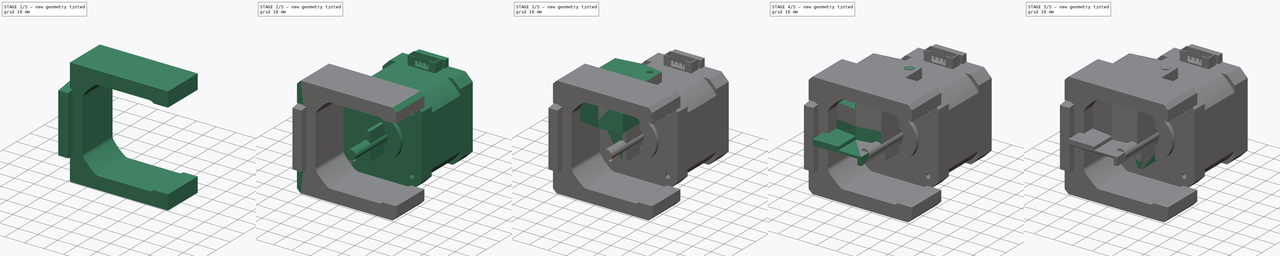
[diagram: build sequence overview — one tinted view per stage of 5, left to right]
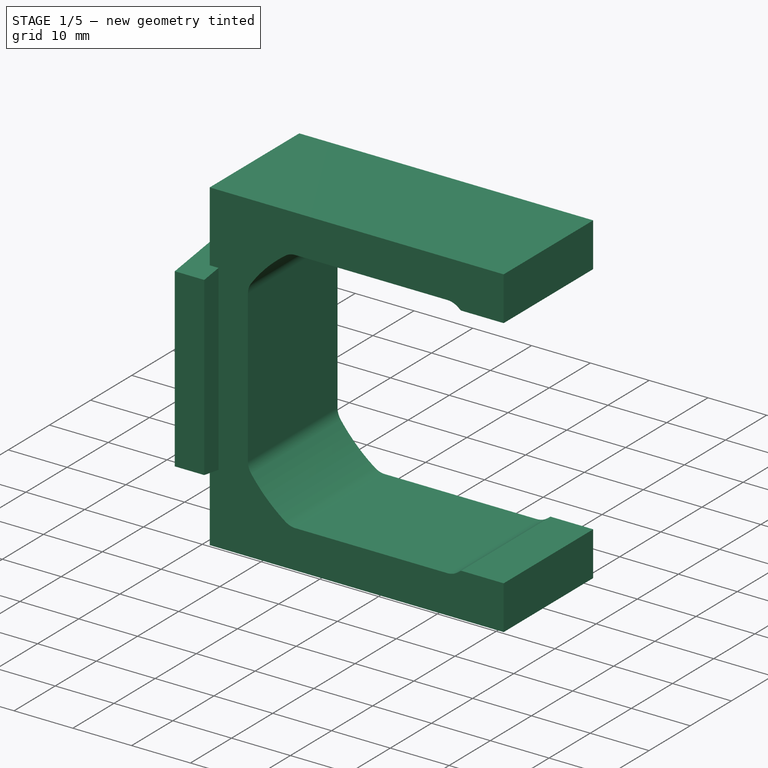
[diagram: stage 1 of 5 — iso view after this stage's code; geometry added in this stage tinted green]
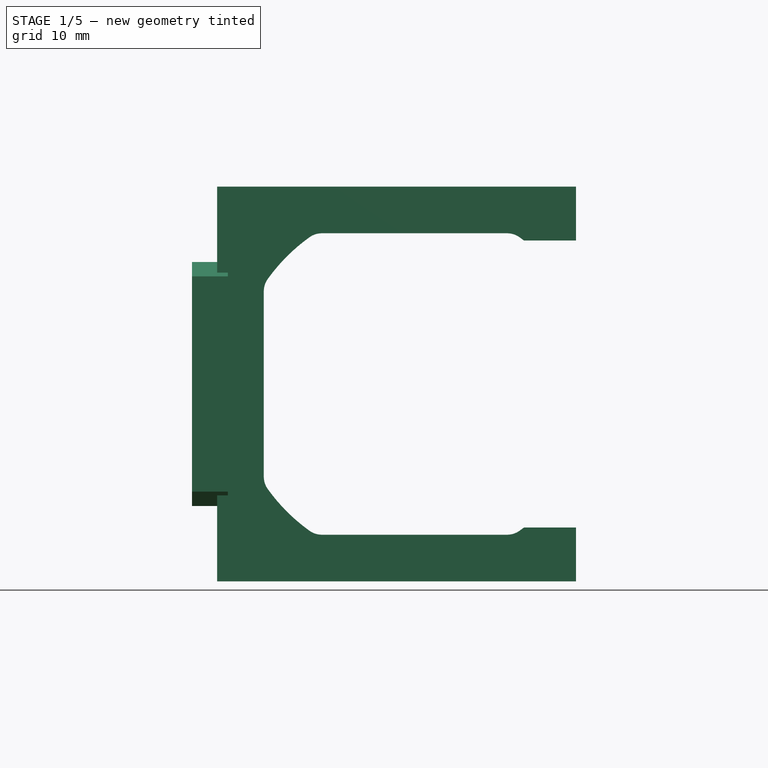
[diagram: stage 1 of 5 — front view after this stage's code; geometry added in this stage tinted green]
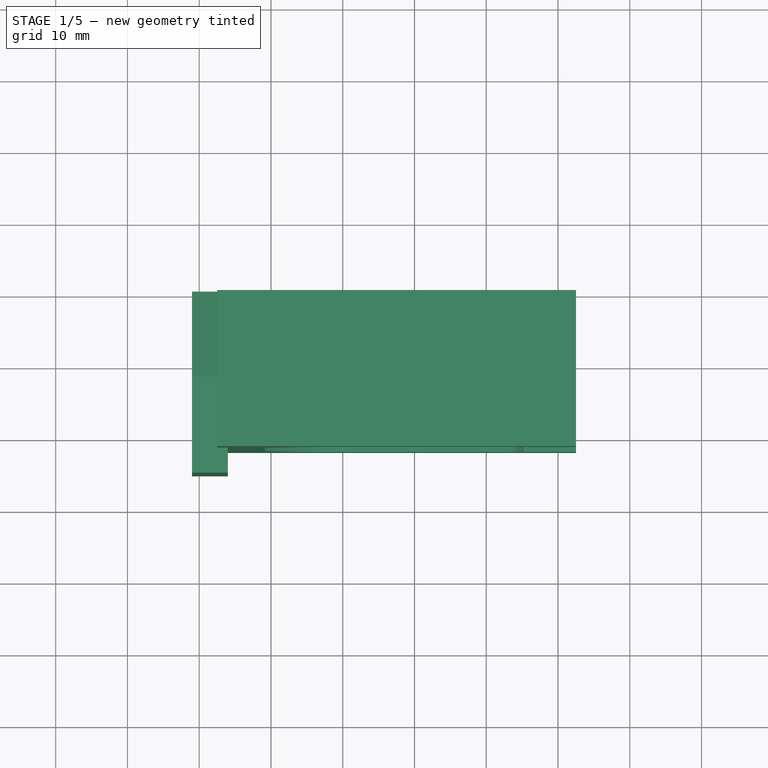
[diagram: stage 1 of 5 — top view after this stage's code; geometry added in this stage tinted green]
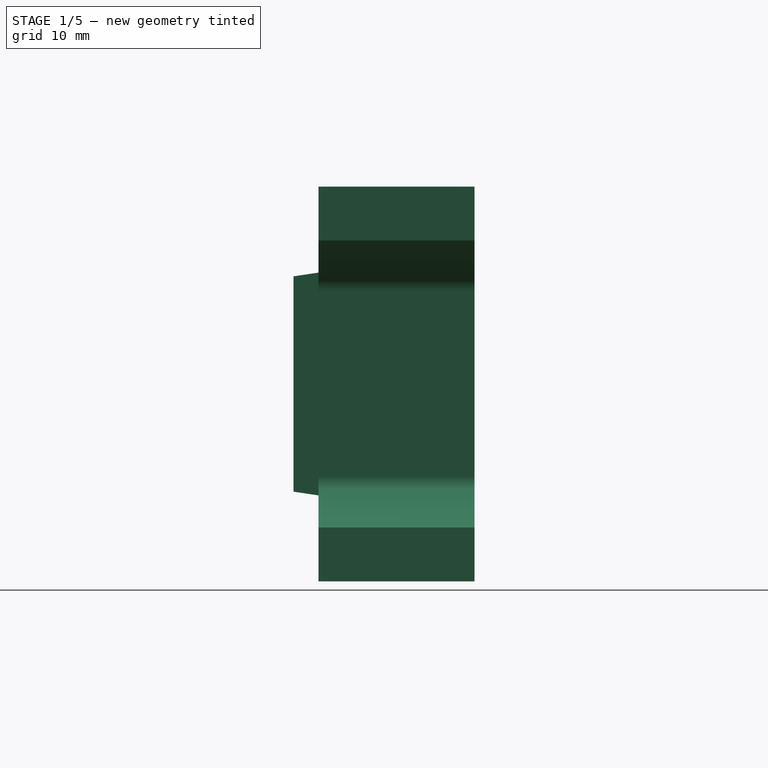
[diagram: stage 1 of 5 — right view after this stage's code; geometry added in this stage tinted green]
FCSTD DOCUMENT  (FreeCAD 1.1R44555 (Git))
Label: ender 3 kusba mount
License: All rights reserved
LicenseURL: https://en.wikipedia.org/wiki/All_rights_reserved
objects: Sketcher::SketchObject×24, PartDesign::Pad×15, PartDesign::Pocket×11, PartDesign::Chamfer×8, PartDesign::Body×5, App::Point×5, Part::FeaturePython×5, Part::Feature×3, PartDesign::Mirrored×2, PartDesign::ShapeBinder×2, Part::Box×2, PartDesign::SubShapeBinder×2, App::DocumentObjectGroup×1
note: 173 computed .brp shape members not serialized (recipe doc carries the construction recipe); baked Part::Feature solids carry a one-line shape summary decoded from their .brp

FEATURE [App::DocumentObjectGroup] GrExplode_Slice  label="Exploded Slice"
  Group = -> [Slice_child0,Slice_child1]
FEATURE [Part::Feature] Part__Feature001  label="SimpleBed001"
  Placement = pos=(-27.5,-1.975,6.1e-15) rot=(0.57735,0.57735,-0.57735;4.18879rad)
  shape: bbox 11.5 x 25.23 x 60 mm, 29 faces (baked)
FEATURE [PartDesign::SubShapeBinder] Binder001
  BindCopyOnChange = 0
  BindMode = 0
  ClaimChildren = false
  Context = -> Body004 [Binder001.]
  Fuse = false
  MakeFace = true
  OffsetFill = false
  OffsetIntersection = false
  OffsetJoinType = 0
  OffsetOpenResult = false
  PartialLoad = false
  Placement = pos=(10,-0.025,0) rot=(0,0,1;0rad)
  Refine = true
  Relative = true
  Support = -> [Part__Feature001[Face1]]
  _Version = 2
FEATURE [Sketcher::SketchObject] Sketch002
  ArcFitTolerance = 1e-06
  ExternalTypes = [0,0]
  FullyConstrained = false
  MakeInternals = false
  MapMode = 5
  Placement = pos=(-31,-6.9e-15,3.4e-15) rot=(0.57735,-0.57735,-0.57735;2.0944rad)
  sketch-geometry (8):
    g0: LineSegment StartX=0.665674 StartY=14.6086 StartZ=0 EndX=0.665674 EndY=9.04659 EndZ=0
    g1: LineSegment StartX=0.665674 StartY=9.04659 StartZ=0 EndX=7.47092 EndY=9.04659 EndZ=0
    g2: LineSegment StartX=7.47092 StartY=9.04659 StartZ=0 EndX=7.47092 EndY=14.6086 EndZ=0
    g3: LineSegment StartX=7.47092 StartY=14.6086 StartZ=0 EndX=0.665674 EndY=14.6086 EndZ=0
    g4: LineSegment StartX=0.73111 StartY=-9.07892 StartZ=0 EndX=0.73111 EndY=-14.51 EndZ=0
    g5: LineSegment StartX=0.73111 StartY=-14.51 StartZ=0 EndX=7.47092 EndY=-14.51 EndZ=0
    g6: LineSegment StartX=7.47092 StartY=-14.51 StartZ=0 EndX=7.47092 EndY=-9.07892 EndZ=0
    g7: LineSegment StartX=7.47092 StartY=-9.07892 StartZ=0 EndX=0.73111 EndY=-9.07892 EndZ=0
  constraints (16):
    c: Coincident(g0,g1)
    c: Coincident(g1,g2)
    c: Coincident(g2,g3)
    c: Coincident(g3,g0)
    c: Vertical(g0)
    c: Vertical(g2)
    c: Horizontal(g1)
    c: Horizontal(g3)
    c: Coincident(g4,g5)
    c: Coincident(g5,g6)
    c: Coincident(g6,g7)
    c: Coincident(g7,g4)
    c: Vertical(g4)
    c: Vertical(g6)
    c: Horizontal(g5)
    c: Horizontal(g7)
FEATURE [Part::Feature] Part__Feature002  label="NEMA17 42-001"
  shape: bbox 42 x 63.75 x 47.08 mm, 266 faces (baked)
FEATURE [Part::Box] Box001  label="Cube001"
  AttacherType = Attacher::AttachEngine3D
  Height = 45
  Length = 45
  Placement = pos=(-22.1,-25.5,-22.7) rot=(0,0,1;0rad)
  Width = 45
FEATURE [Part::FeaturePython] Slice001  # WARN: FeaturePython — macro-defined, semantics opaque (R4)
  Base = -> Part__Feature002
  Mode = 1
  Tolerance = 0
  Tools = -> [Box001]
FEATURE [Part::FeaturePython] Slice_child001  label="Slice.001"  # WARN: FeaturePython — macro-defined, semantics opaque (R4)
  Base = -> Slice001
  FilterType = 1
  Invert = false
  OverrideMaxVal = 0
  WindowFrom = 80
  WindowTo = 100
  items = 0
FEATURE [PartDesign::SubShapeBinder] Binder
  BindCopyOnChange = 0
  BindMode = 0
  ClaimChildren = false
  Context = -> Body004 [Binder.]
  Fuse = false
  MakeFace = true
  OffsetFill = false
  OffsetIntersection = false
  OffsetJoinType = 0
  OffsetOpenResult = false
  PartialLoad = false
  Refine = true
  Relative = true
  Support = -> [Slice_child001[Face48]]
  _Version = 2
FEATURE [App::Point] Origin008
  Role = Origin
FEATURE [Sketcher::SketchObject] Sketch036
  ArcFitTolerance = 1e-06
  AttachmentSupport = -> [Origin009]
  ExternalTypes = [0,0,0,0,0,0,0,0,0,0,0,0,0,0,0,0]
  FullyConstrained = true
  MakeInternals = false
  MapMode = 5
  Placement = pos=(0,0,0) rot=(1,0,0;1.5708rad)
  sketch-geometry (4):
    g0: LineSegment StartX=-27.5 StartY=27.5 StartZ=0 EndX=-27.5 EndY=-27.5 EndZ=0
    g1: LineSegment StartX=-27.5 StartY=-27.5 StartZ=0 EndX=22.5 EndY=-27.5 EndZ=0
    g2: LineSegment StartX=22.5 StartY=-27.5 StartZ=0 EndX=22.5 EndY=27.5 EndZ=0
    g3: LineSegment StartX=22.5 StartY=27.5 StartZ=0 EndX=-27.5 EndY=27.5 EndZ=0
  constraints (11):
    c: Coincident(g0,g1)
    c: Coincident(g1,g2)
    c: Coincident(g2,g3)
    c: Coincident(g3,g0)
    c: Vertical(g2)
    c: Horizontal(g1)
    c: Horizontal(g3)
    c: DistanceX(g1,g1) = 50
    c: DistanceY(g2,g2) = 55
    c: Symmetric(g0,g0,g-1)
    c: DistanceX(g0,g-1) = 27.5
FEATURE [PartDesign::Pad] Pad011
  Direction = (0,-1,2e-16)
  Length = 21.75
  Length2 = 10
  Profile = -> Sketch036
  ReferenceAxis = -> Sketch036 [N_Axis]
  Refine = true
  SideType = 0
  Suppressed = false
  Type = 0
  Type2 = 0
FEATURE [PartDesign::Pocket] Pocket009
  BaseFeature = -> Pad011
  Direction = (0,-1,0)
  Length = 5
  Length2 = 5
  Profile = -> Binder
  Refine = true
  SideType = 0
  Suppressed = false
  Type = 1
  Type2 = 0
FEATURE [Sketcher::SketchObject] Sketch001
  ArcFitTolerance = 1e-06
  AttachmentSupport = -> [Pocket009]
  ExternalGeometry = -> [Pocket009]
  ExternalTypes = [0,0]
  FullyConstrained = false
  MakeInternals = false
  MapMode = 5
  Placement = pos=(0,0,0) rot=(0,0.707107,0.707107;3.14159rad)
  sketch-geometry (4):
    g0: LineSegment StartX=-22.5 StartY=20 StartZ=0 EndX=-22.5 EndY=-20 EndZ=0
    g1: LineSegment StartX=-22.5 StartY=-20 StartZ=0 EndX=-12.719 EndY=-20 EndZ=0
    g2: LineSegment StartX=-12.719 StartY=-20 StartZ=0 EndX=-12.719 EndY=20 EndZ=0
    g3: LineSegment StartX=-12.719 StartY=20 StartZ=0 EndX=-22.5 EndY=20 EndZ=0
  constraints (11):
    c: Coincident(g0,g1)
    c: Coincident(g1,g2)
    c: Coincident(g2,g3)
    c: Coincident(g3,g0)
    c: Vertical(g0)
    c: Vertical(g2)
    c: Horizontal(g1)
    c: Horizontal(g3)
    c: PointOnObject(g0,g-3)
    c: DistanceY(g0,g-3) = 7.5
    c: DistanceY(g-3,g0) = 7.5
FEATURE [PartDesign::Pocket] Pocket010
  BaseFeature = -> Pocket009
  Direction = (0,-1,2e-16)
  Length = 5
  Length2 = 5
  Profile = -> Sketch001
  ReferenceAxis = -> Sketch001 [N_Axis]
  Refine = true
  SideType = 0
  Suppressed = false
  Type = 1
  Type2 = 0
FEATURE [Sketcher::SketchObject] Sketch003
  ArcFitTolerance = 1e-06
  ExternalGeometry = -> [Binder001]
  ExternalTypes = [0,0]
  FullyConstrained = true
  MakeInternals = false
  MapMode = 5
  Placement = pos=(-31,0,0) rot=(0.57735,-0.57735,-0.57735;2.0944rad)
  sketch-geometry (2):
    g0: Circle CenterX=4.18 CenterY=11.75 CenterZ=0 NormalX=0 NormalY=0 NormalZ=1 AngleXU=0 Radius=1.5
    g1: Circle CenterX=4.18 CenterY=-11.75 CenterZ=0 NormalX=0 NormalY=0 NormalZ=1 AngleXU=0 Radius=1.5
  constraints (4):
    c: Coincident(g0,g-3)
    c: Coincident(g1,g-4)
    c: Equal(g1,g0)
    c: Diameter(g0) = 3
FEATURE [PartDesign::Pad] Pad012
  BaseFeature = -> Pocket010
  Direction = (-1,0,0)
  Length = 5
  Length2 = 10
  Profile = -> Binder001
  Refine = true
  SideType = 0
  Suppressed = false
  Type = 0
  Type2 = 0
FEATURE [PartDesign::Pad] Pad013
  BaseFeature = -> Pad012
  Direction = (-1,1e-16,-1e-16)
  Length = 10
  Length2 = 10
  Profile = -> Sketch002
  ReferenceAxis = -> Sketch002 [N_Axis]
  Refine = true
  Reversed = true
  SideType = 0
  Suppressed = false
  Type = 3
  Type2 = 0
  UpToFace = -> Pad012 [Face32]
FEATURE [PartDesign::Pocket] Pocket011
  BaseFeature = -> Pad013
  Direction = (1,0,0)
  Length = 9.5
  Length2 = 5
  Profile = -> Sketch003
  ReferenceAxis = -> Sketch003 [N_Axis]
  SideType = 0
  Suppressed = false
  Type = 0
  Type2 = 0
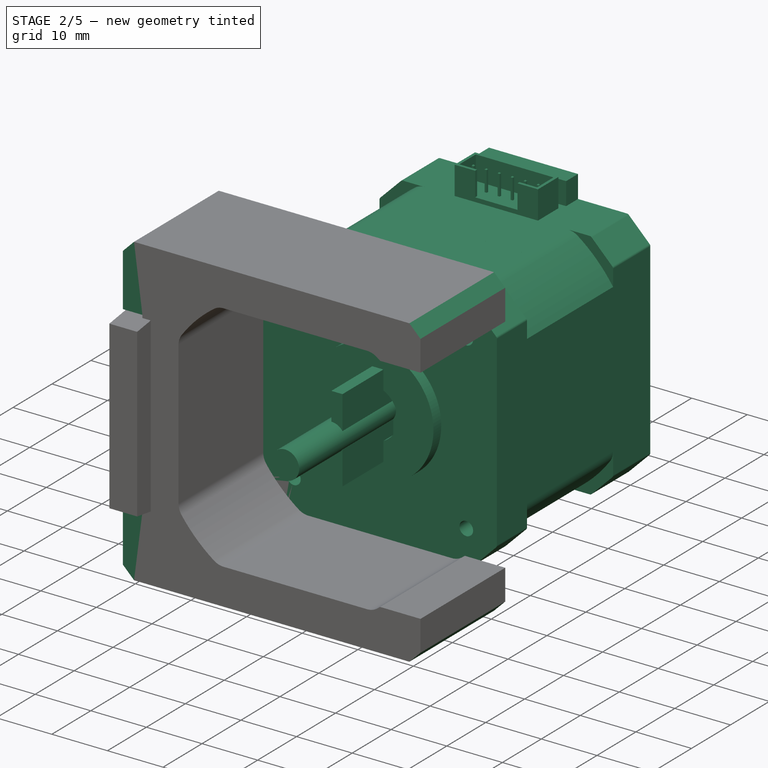
[diagram: stage 2 of 5 — iso view after this stage's code; geometry added in this stage tinted green]
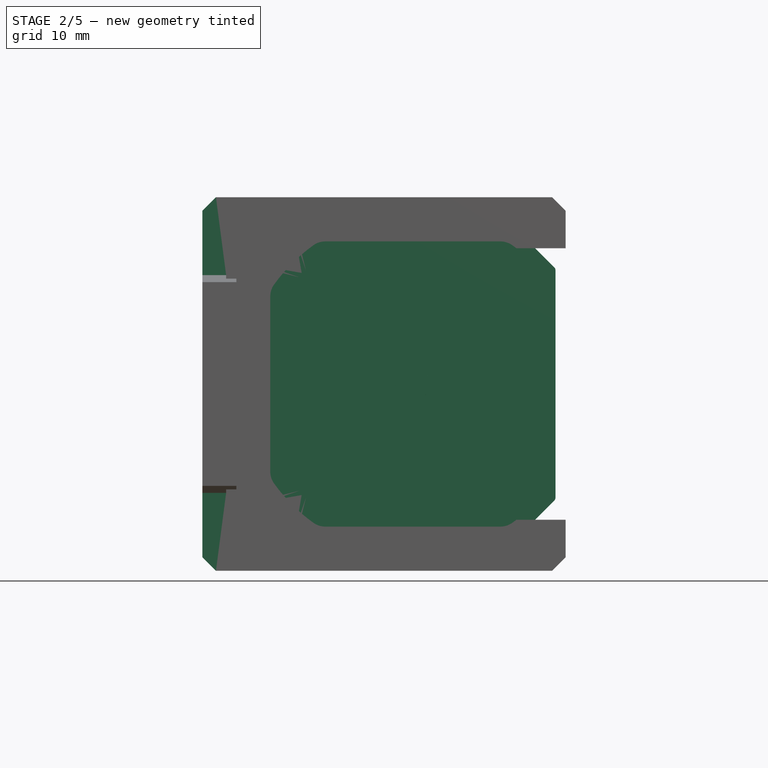
[diagram: stage 2 of 5 — front view after this stage's code; geometry added in this stage tinted green]
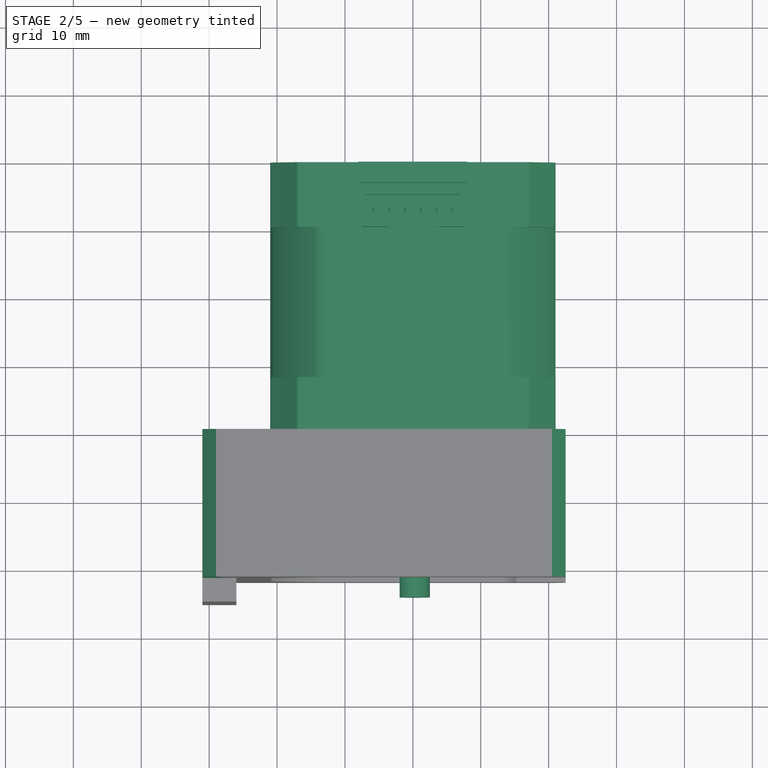
[diagram: stage 2 of 5 — top view after this stage's code; geometry added in this stage tinted green]
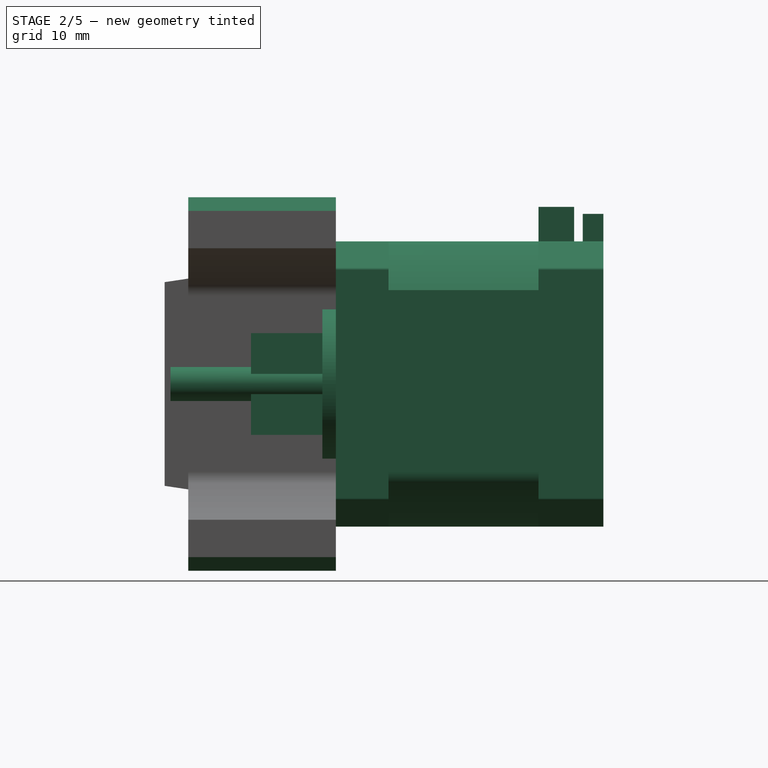
[diagram: stage 2 of 5 — right view after this stage's code; geometry added in this stage tinted green]
FEATURE [PartDesign::Body] Body  label="SimpleBed"
  AllowCompound = true
  Group = -> [ShapeBinder,Sketch025,Pad004,Sketch026,Pad005,ShapeBinder001,Sketch027,Pocket005,Sketch028,Pad006,Sketch029,Pocket006,Chamfer003,Chamfer004]
  Origin = -> Origin
  Placement = pos=(-1e-15,-3,0) rot=(-0.707107,0.707107,0;3.14159rad)
  Tip = -> Chamfer004
FEATURE [Sketcher::SketchObject] Sketch030
  ArcFitTolerance = 0
  AttachmentSupport = -> [YZ_Plane003]
  ExternalTypes = [0]
  FullyConstrained = true
  MakeInternals = false
  MapMode = 5
  Placement = pos=(0,0,0) rot=(0.57735,0.57735,0.57735;2.0944rad)
  sketch-geometry (5):
    g0: LineSegment StartX=-12.5 StartY=7.5 StartZ=0 EndX=-12.5 EndY=-7.5 EndZ=0
    g1: LineSegment StartX=-12.5 StartY=-7.5 StartZ=0 EndX=12.5 EndY=-7.5 EndZ=0
    g2: LineSegment StartX=12.5 StartY=-7.5 StartZ=0 EndX=12.5 EndY=7.5 EndZ=0
    g3: LineSegment StartX=12.5 StartY=7.5 StartZ=0 EndX=-12.5 EndY=7.5 EndZ=0
    g4: GeomPoint [constr] X=0 Y=0 Z=0
  constraints (12):
    c: Coincident(g0,g1)
    c: Coincident(g1,g2)
    c: Coincident(g2,g3)
    c: Coincident(g3,g0)
    c: Vertical(g0)
    c: Vertical(g2)
    c: Horizontal(g1)
    c: Horizontal(g3)
    c: Symmetric(g2,g0,g4)
    c: Coincident(g4,g-1)
    c: DistanceX(g1,g1) = 25
    c: DistanceY(g2,g2) = 15
FEATURE [PartDesign::Pad] Pad007
  Direction = (1,0,0)
  Length = 2
  Length2 = 10
  Placement = pos=(0,0,0) rot=(1,1,1;2.0944rad)
  Profile = -> Sketch030
  ReferenceAxis = -> Sketch030 [N_Axis]
  SideType = 0
  Suppressed = false
  Type = 0
  Type2 = 0
FEATURE [PartDesign::Body] Body003  label="Ender3V1_Hotend"
  AllowCompound = true
  Group = -> [Sketch031,Sketch032,Sketch030,Pad007,Sketch033,Pad008,Pocket007,Pocket008,Sketch034,Pad009,Mirrored001,Chamfer005,Sketch035,Pad010]
  Origin = -> Origin003
  Placement = pos=(0,0,0) rot=(1,0,0;3.14159rad)
  Tip = -> Pad010
FEATURE [App::Point] Origin004  label="Origin"
  Role = Origin
FEATURE [App::Point] Origin005  label="Origin"
  Role = Origin
FEATURE [App::Point] Origin006  label="Origin"
  Role = Origin
FEATURE [App::Point] Origin007  label="Origin"
  Role = Origin
FEATURE [Part::Feature] Part__Feature  label="NEMA17 42-40"
  shape: bbox 42 x 63.75 x 47.08 mm, 266 faces (baked)
FEATURE [Part::Box] Box  label="Cube"
  AttacherType = Attacher::AttachEngine3D
  Height = 45
  Length = 45
  Placement = pos=(-22.1,-25.5,-22.7) rot=(0,0,1;0rad)
  Width = 45
FEATURE [Part::FeaturePython] Slice  # WARN: FeaturePython — macro-defined, semantics opaque (R4)
  Base = -> Part__Feature
  Mode = 1
  Tolerance = 0
  Tools = -> [Box]
FEATURE [Part::FeaturePython] Slice_child0  label="Slice.0"  # WARN: FeaturePython — macro-defined, semantics opaque (R4)
  Base = -> Slice
  FilterType = 1
  Invert = false
  OverrideMaxVal = 0
  WindowFrom = 80
  WindowTo = 100
  items = 0
FEATURE [Part::FeaturePython] Slice_child1  label="Slice.1"  # WARN: FeaturePython — macro-defined, semantics opaque (R4)
  Base = -> Slice
  FilterType = 1
  Invert = false
  OverrideMaxVal = 0
  WindowFrom = 80
  WindowTo = 100
  items = 1
FEATURE [PartDesign::Chamfer] Chamfer008
  Angle = 45
  Base = -> Pocket011 [Edge82,Edge83]
  BaseFeature = -> Pocket011
  ChamferType = 0
  FlipDirection = false
  Size = 1
  Size2 = 1
  SupportTransform = false
  Suppressed = false
  UseAllEdges = false
FEATURE [Sketcher::SketchObject] Sketch037
  ArcFitTolerance = 1e-06
  AttachmentSupport = -> [Chamfer008]
  ExternalGeometry = -> [Chamfer008]
  ExternalTypes = [0,0,0,0,0,0]
  FullyConstrained = true
  MakeInternals = false
  MapMode = 5
  Placement = pos=(-27.5,0,0) rot=(0.57735,-0.57735,-0.57735;2.0944rad)
  sketch-geometry (10):
    g0: LineSegment StartX=-7.1e-15 StartY=27.5 StartZ=0 EndX=-7.1e-15 EndY=15.507 EndZ=0
    g1: LineSegment StartX=21.75 StartY=16.027 StartZ=0 EndX=21.75 EndY=27.5 EndZ=0
    g2: LineSegment StartX=21.75 StartY=27.5 StartZ=0 EndX=-7.1e-15 EndY=27.5 EndZ=0
    g3: LineSegment StartX=6.1e-15 StartY=-27.5 StartZ=0 EndX=21.75 EndY=-27.5 EndZ=0
    g4: LineSegment StartX=21.75 StartY=-27.5 StartZ=0 EndX=21.75 EndY=-16.027 EndZ=0
    g5: LineSegment StartX=6.1e-15 StartY=-15.507 StartZ=0 EndX=6.1e-15 EndY=-27.5 EndZ=0
    g6: LineSegment StartX=-7.1e-15 StartY=15.507 StartZ=0 EndX=11.88 EndY=17.5 EndZ=0
    g7: LineSegment StartX=11.88 StartY=17.5 StartZ=0 EndX=21.75 EndY=16.027 EndZ=0
    g8: LineSegment StartX=6.1e-15 StartY=-15.507 StartZ=0 EndX=11.88 EndY=-17.5 EndZ=0
    g9: LineSegment StartX=11.88 StartY=-17.5 StartZ=0 EndX=21.75 EndY=-16.027 EndZ=0
  constraints (26):
    c: Coincident(g1,g2)
    c: Coincident(g2,g0)
    c: Vertical(g0)
    c: Vertical(g1)
    c: Coincident(g0,g-3)
    c: Coincident(g1,g-3)
    c: Coincident(g3,g4)
    c: Coincident(g5,g3)
    c: Vertical(g4)
    c: Vertical(g5)
    c: Coincident(g3,g-4)
    c: Coincident(g-4,g3)
    c: Distance(g5,g-6) = 0.5
    c: Distance(g4,g-5) = 0.5
    c: Distance(g1,g-7) = 0.5
    c: Distance(g0,g-8) = 0.5
    c: Coincident(g0,g6)
    c: Coincident(g6,g7)
    c: Coincident(g7,g1)
    c: Coincident(g8,g9)
    c: Coincident(g9,g4)
    c: Vertical(g8,g-6)
    c: Vertical(g-8,g6)
    c: DistanceY(g-8,g6) = 0.5
    c: DistanceY(g8,g-6) = 0.5
    c: Coincident(g5,g8)
FEATURE [PartDesign::Pad] Pad014
  BaseFeature = -> Chamfer008
  Direction = (-1,0,0)
  Length = 10
  Length2 = 10
  Profile = -> Sketch037
  ReferenceAxis = -> Sketch037 [N_Axis]
  Refine = true
  SideType = 0
  Suppressed = false
  Type = 3
  Type2 = 0
  UpToFace = -> Chamfer008 [Face1]
FEATURE [PartDesign::Chamfer] Chamfer009
  Angle = 45
  Base = -> Pad014 [Edge56,Edge51,Edge110,Edge76]
  BaseFeature = -> Pad014
  ChamferType = 0
  FlipDirection = false
  Refine = true
  Size = 2
  Size2 = 1
  SupportTransform = false
  Suppressed = false
  UseAllEdges = false
FEATURE [PartDesign::Body] Body004  label="Ender 3 Stepper Mount"
  AllowCompound = true
  Group = -> [Sketch036,Binder,Pad011,Pocket009,Sketch001,Pocket010,Binder001,Pad012,Sketch002,Sketch003,Pad013,Pocket011,Chamfer008,Sketch037,Pad014,Chamfer009]
  Origin = -> Origin009
  Tip = -> Chamfer009
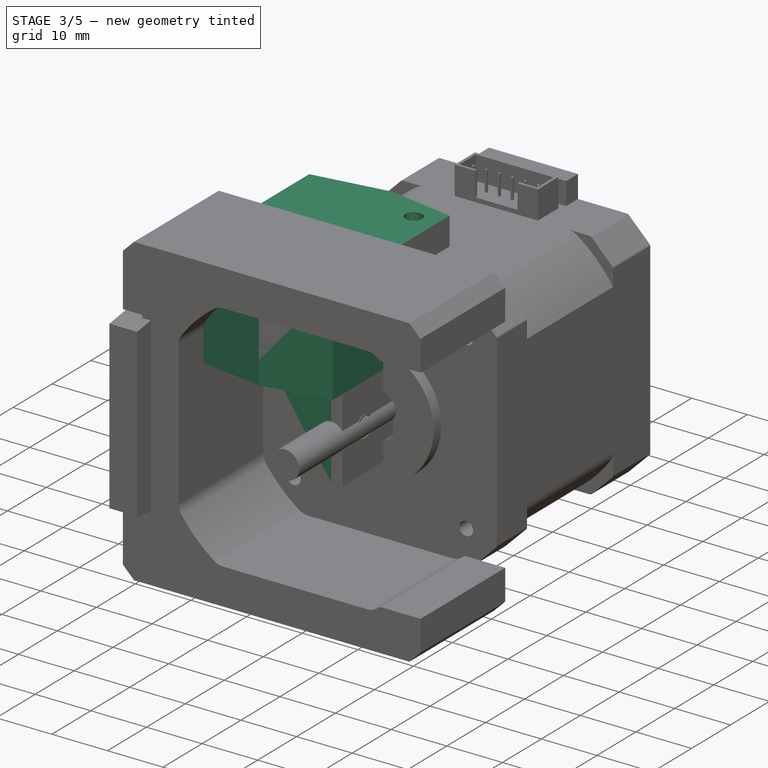
[diagram: stage 3 of 5 — iso view after this stage's code; geometry added in this stage tinted green]
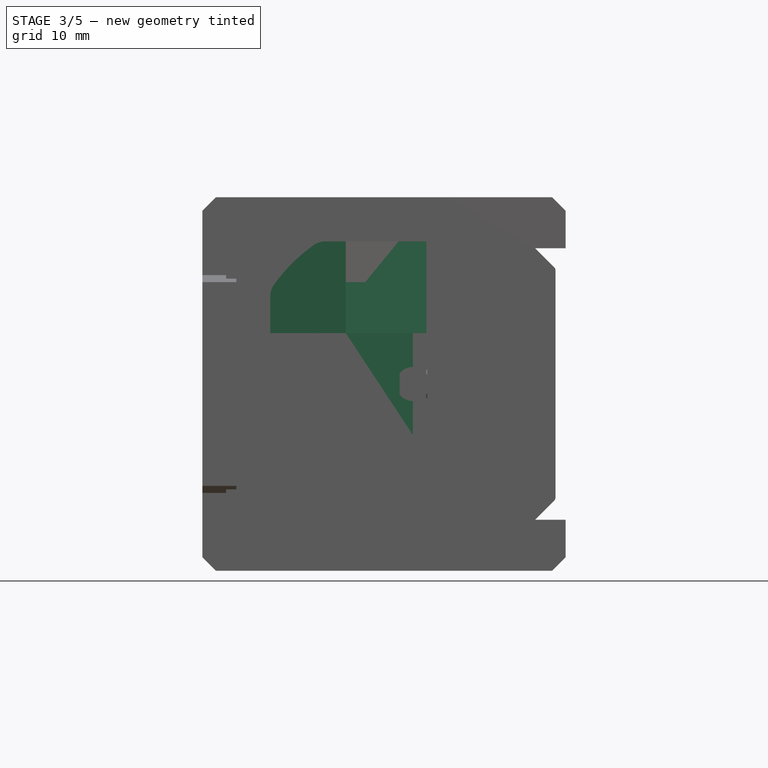
[diagram: stage 3 of 5 — front view after this stage's code; geometry added in this stage tinted green]
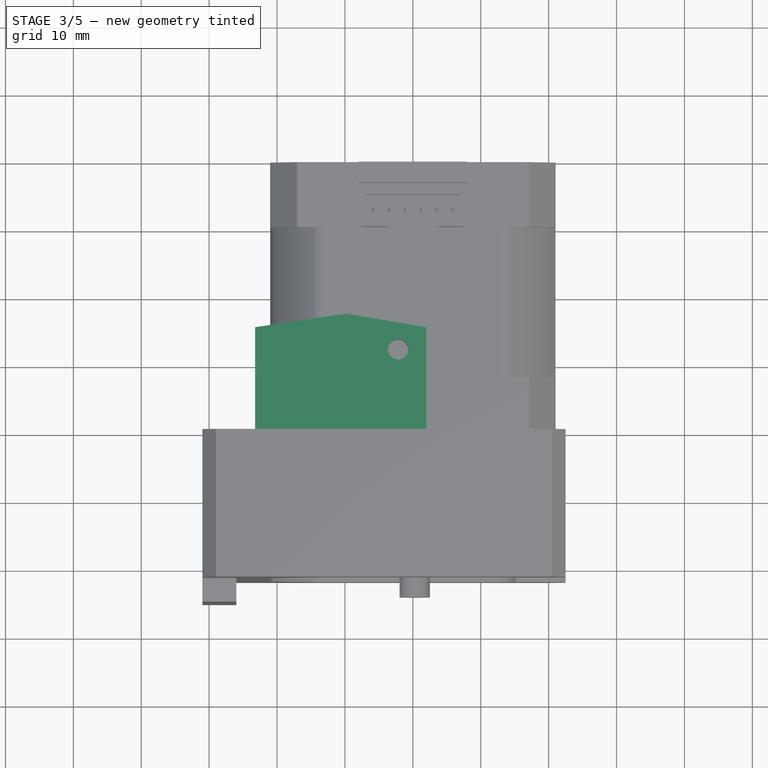
[diagram: stage 3 of 5 — top view after this stage's code; geometry added in this stage tinted green]
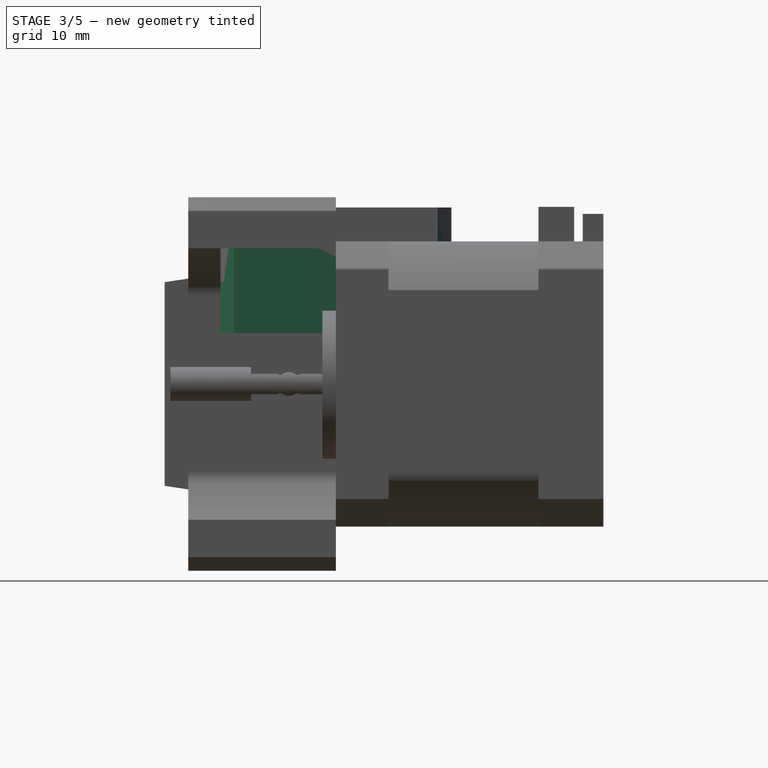
[diagram: stage 3 of 5 — right view after this stage's code; geometry added in this stage tinted green]
FEATURE [PartDesign::Body] Body001  label="Ender3V3SE_Hotend"
  AllowCompound = true
  Group = -> [Sketch012,Sketch016,Sketch,Pad,Sketch017,Pad001,Pocket,Pocket001,Sketch018,Pad002,Mirrored,Chamfer]
  Origin = -> Origin001
  Placement = pos=(0,0,0) rot=(1,0,0;3.14159rad)
  Tip = -> Chamfer
FEATURE [Sketcher::SketchObject] Sketch022
  ArcFitTolerance = 0
  ExternalTypes = [0]
  FullyConstrained = false
  MakeInternals = false
  MapMode = 5
  Placement = pos=(0,3e-15,11.5) rot=(0,0,-1;1.5708rad)
  sketch-geometry (6):
    g0: LineSegment StartX=-15 StartY=-23.231 StartZ=0 EndX=15 EndY=-23.231 EndZ=0
    g1: LineSegment StartX=15 StartY=2 StartZ=0 EndX=-15 EndY=2 EndZ=0
    g2: LineSegment StartX=-17 StartY=-9.88 StartZ=0 EndX=-15 EndY=-23.231 EndZ=0
    g3: LineSegment StartX=17 StartY=-9.88 StartZ=0 EndX=15 EndY=-23.231 EndZ=0
    g4: LineSegment StartX=-15 StartY=2 StartZ=0 EndX=-17 EndY=-9.88 EndZ=0
    g5: LineSegment StartX=15 StartY=2 StartZ=0 EndX=17 EndY=-9.88 EndZ=0
  constraints (8):
    c: Coincident(g0,g2)
    c: Distance(g2,g2) = 13.5
    c: Distance(g3,g3) = 13.5
    c: Coincident(g0,g3)
    c: DistanceX(g0,g0) = 30
    c: Symmetric(g0,g0,g-2)
    c: Coincident(g1,g4)
    c: Coincident(g1,g5)
FEATURE [PartDesign::Pad] Pad003
  Direction = (0,0,1)
  Length = 14.5
  Length2 = 10
  Placement = pos=(0,3e-15,11.5) rot=(0,0,-1;1.5708rad)
  Profile = -> Sketch022
  ReferenceAxis = -> Sketch022 [N_Axis]
  SideType = 0
  Suppressed = false
  Type = 0
  Type2 = 0
FEATURE [Sketcher::SketchObject] Sketch021
  ArcFitTolerance = 0
  AttachmentSupport = -> [Pad003]
  ExternalGeometry = -> [Pad003]
  ExternalTypes = [0]
  FullyConstrained = false
  MakeInternals = false
  MapMode = 5
  Placement = pos=(0,3e-15,26) rot=(0,0,-1;1.5708rad)
  sketch-geometry (4):
    g0: Circle CenterX=11.75 CenterY=-2.18 CenterZ=0 NormalX=0 NormalY=0 NormalZ=1 AngleXU=0 Radius=1.5
    g1: Circle CenterX=-11.75 CenterY=-2.18 CenterZ=0 NormalX=0 NormalY=0 NormalZ=1 AngleXU=0 Radius=1.5
    g2: GeomPoint [constr] X=0 Y=-2.18 Z=0
    g3: GeomPoint [constr] X=0 Y=18 Z=0
  constraints (8):
    c: Equal(g0,g1)
    c: Diameter(g1) = 3
    c: DistanceX(g1,g0) = 23.5
    c: Symmetric(g1,g0,g2)
    c: Vertical(g2,g3)
    c: Horizontal(g0,g2)
    c: PointOnObject(g2,g-2)
    c: DistanceY(g1,g-3) = 4.18
FEATURE [PartDesign::Pocket] Pocket002
  BaseFeature = -> Pad003
  Direction = (0,0,-1)
  Length = 7.25
  Length2 = 5
  Placement = pos=(0,3e-15,11.5) rot=(0,0,-1;1.5708rad)
  Profile = -> Sketch021
  ReferenceAxis = -> Sketch021 [N_Axis]
  SideType = 0
  Suppressed = false
  Type = 0
  Type2 = 0
FEATURE [Sketcher::SketchObject] Sketch033
  ArcFitTolerance = 0
  AttachmentSupport = -> [Pad007]
  ExternalGeometry = -> [Pad007]
  ExternalTypes = [0]
  FullyConstrained = false
  MakeInternals = false
  MapMode = 5
  Placement = pos=(0,1.7e-15,7.5) rot=(0,0,-1;1.5708rad)
  sketch-geometry (6):
    g0: LineSegment StartX=-15 StartY=-23.231 StartZ=0 EndX=15 EndY=-23.231 EndZ=0
    g1: LineSegment StartX=15 StartY=2 StartZ=0 EndX=-15 EndY=2 EndZ=0
    g2: LineSegment StartX=-17 StartY=-9.88 StartZ=0 EndX=-15 EndY=-23.231 EndZ=0
    g3: LineSegment StartX=17 StartY=-9.88 StartZ=0 EndX=15 EndY=-23.231 EndZ=0
    g4: LineSegment StartX=-15 StartY=2 StartZ=0 EndX=-17 EndY=-9.88 EndZ=0
    g5: LineSegment StartX=15 StartY=2 StartZ=0 EndX=17 EndY=-9.88 EndZ=0
  constraints (8):
    c: Coincident(g0,g2)
    c: Distance(g2,g2) = 13.5
    c: Distance(g3,g3) = 13.5
    c: Coincident(g0,g3)
    c: DistanceX(g0,g0) = 30
    c: Symmetric(g0,g0,g-2)
    c: Coincident(g1,g4)
    c: Coincident(g1,g5)
FEATURE [PartDesign::Pad] Pad008
  BaseFeature = -> Pad007
  Direction = (0,0,1)
  Length = 7.5
  Length2 = 10
  Placement = pos=(0,0,0) rot=(1,1,1;2.0944rad)
  Profile = -> Sketch033
  ReferenceAxis = -> Sketch033 [N_Axis]
  SideType = 0
  Suppressed = false
  Type = 0
  Type2 = 0
FEATURE [Sketcher::SketchObject] Sketch031
  ArcFitTolerance = 0
  AttachmentSupport = -> [Pad008]
  ExternalTypes = [0]
  FullyConstrained = true
  MakeInternals = false
  MapMode = 5
  Placement = pos=(0,0,0) rot=(0.57735,0.57735,-0.57735;4.18879rad)
  sketch-geometry (2):
    g0: Circle CenterX=-6.925 CenterY=0 CenterZ=0 NormalX=0 NormalY=0 NormalZ=1 AngleXU=0 Radius=1.75
    g1: Circle CenterX=6.925 CenterY=0 CenterZ=0 NormalX=0 NormalY=0 NormalZ=1 AngleXU=0 Radius=1.75
  constraints (5):
    c: PointOnObject(g0,g-1)
    c: DistanceX(g0,g1) = 13.85
    c: Equal(g1,g0)
    c: Diameter(g1) = 3.5
    c: Symmetric(g0,g1,g-2)
FEATURE [Sketcher::SketchObject] Sketch032
  ArcFitTolerance = 0
  AttachmentSupport = -> [Pad008]
  ExternalGeometry = -> [Pad008]
  ExternalTypes = [0]
  FullyConstrained = false
  MakeInternals = false
  MapMode = 5
  Placement = pos=(0,0,15) rot=(0,0,-1;1.5708rad)
  sketch-geometry (4):
    g0: Circle CenterX=11.75 CenterY=-2.18 CenterZ=0 NormalX=0 NormalY=0 NormalZ=1 AngleXU=0 Radius=1.5
    g1: Circle CenterX=-11.75 CenterY=-2.18 CenterZ=0 NormalX=0 NormalY=0 NormalZ=1 AngleXU=0 Radius=1.5
    g2: GeomPoint [constr] X=0 Y=-2.18 Z=0
    g3: GeomPoint [constr] X=0 Y=18 Z=0
  constraints (8):
    c: Equal(g0,g1)
    c: Diameter(g1) = 3
    c: DistanceX(g1,g0) = 23.5
    c: Symmetric(g1,g0,g2)
    c: Vertical(g2,g3)
    c: Horizontal(g0,g2)
    c: DistanceY(g0,g-3) = 4.18
    c: PointOnObject(g2,g-2)
FEATURE [PartDesign::Pocket] Pocket007
  BaseFeature = -> Pad008
  Direction = (0,0,-1)
  Length = 7.25
  Length2 = 5
  Placement = pos=(0,0,0) rot=(1,1,1;2.0944rad)
  Profile = -> Sketch032
  ReferenceAxis = -> Sketch032 [N_Axis]
  SideType = 0
  Suppressed = false
  Type = 0
  Type2 = 0
FEATURE [PartDesign::Pocket] Pocket008
  BaseFeature = -> Pocket007
  Direction = (1,0,0)
  Length = 5
  Length2 = 5
  Placement = pos=(0,0,0) rot=(1,1,1;2.0944rad)
  Profile = -> Sketch031
  ReferenceAxis = -> Sketch031 [N_Axis]
  SideType = 0
  Suppressed = false
  Type = 0
  Type2 = 0
FEATURE [Sketcher::SketchObject] Sketch034
  ArcFitTolerance = 0
  AttachmentSupport = -> [Pocket008]
  ExternalGeometry = -> [Sketch033,Pocket008]
  ExternalTypes = [0]
  FullyConstrained = true
  MakeInternals = false
  MapMode = 5
  Placement = pos=(-2.8e-15,-12.5,0) rot=(0.57735,0.57735,-0.57735;2.0944rad)
  sketch-geometry (3):
    g0: LineSegment StartX=-7.5 StartY=-9.88 StartZ=0 EndX=7.5 EndY=1.42e-14 EndZ=0
    g1: LineSegment StartX=-7.5 StartY=1.42e-14 StartZ=0 EndX=-7.5 EndY=-9.88 EndZ=0
    g2: LineSegment StartX=-7.5 StartY=1.42e-14 StartZ=0 EndX=7.5 EndY=1.42e-14 EndZ=0
  constraints (7):
    c: Coincident(g0,g-3)
    c: PointOnObject(g1,g-3)
    c: Coincident(g1,g0)
    c: Coincident(g2,g1)
    c: Horizontal(g2)
    c: Coincident(g-4,g0)
    c: Coincident(g2,g0)
FEATURE [PartDesign::Pad] Pad009
  BaseFeature = -> Pocket008
  Direction = (-1e-16,-1,1e-15)
  Length = 2
  Length2 = 10
  Placement = pos=(0,0,0) rot=(1,1,1;2.0944rad)
  Profile = -> Sketch034
  ReferenceAxis = -> Sketch034 [N_Axis]
  Reversed = true
  SideType = 0
  Suppressed = false
  Type = 0
  Type2 = 0
FEATURE [PartDesign::Mirrored] Mirrored001
  BaseFeature = -> Pad009
  MirrorPlane = -> XZ_Plane003
  Originals = -> [Pad009]
  Placement = pos=(0,0,0) rot=(1,1,1;2.0944rad)
  Suppressed = false
  TransformMode = 0
FEATURE [PartDesign::Chamfer] Chamfer005
  Angle = 45
  Base = -> Mirrored001 [Edge53,Edge52]
  BaseFeature = -> Mirrored001
  ChamferType = 0
  FlipDirection = false
  Placement = pos=(0,0,0) rot=(1,1,1;2.0944rad)
  Size = 1
  Size2 = 1
  SupportTransform = false
  Suppressed = false
  UseAllEdges = false
FEATURE [PartDesign::Body] Body002  label="Bed"
  AllowCompound = true
  Group = -> [Sketch021,Sketch022,Pad003,Pocket002,Sketch023,Pocket003,Chamfer006,Chamfer007]
  Origin = -> Origin002
  Tip = -> Chamfer007
FEATURE [Sketcher::SketchObject] Sketch035
  ArcFitTolerance = 0
  AttachmentOffset = pos=(0,0,-1) rot=(0,0,1;0rad)
  AttachmentSupport = -> [Chamfer005]
  ExternalGeometry = -> [Sketch031]
  ExternalTypes = [0]
  FullyConstrained = false
  MakeInternals = false
  MapMode = 5
  Placement = pos=(1,0,0) rot=(0.57735,0.57735,-0.57735;4.18879rad)
  sketch-geometry (4):
    g0: Circle CenterX=-6.925 CenterY=0 CenterZ=0 NormalX=0 NormalY=0 NormalZ=1 AngleXU=0 Radius=1.75
    g1: Circle CenterX=6.925 CenterY=0 CenterZ=0 NormalX=0 NormalY=0 NormalZ=1 AngleXU=0 Radius=1.75
    g2: Circle CenterX=-6.925 CenterY=0 CenterZ=0 NormalX=0 NormalY=0 NormalZ=1 AngleXU=0 Radius=2.125
    g3: Circle CenterX=6.925 CenterY=0 CenterZ=0 NormalX=0 NormalY=0 NormalZ=1 AngleXU=0 Radius=2.125
  constraints (4):
    c: Coincident(g2,g0)
    c: Coincident(g3,g1)
    c: Equal(g2,g3)
    c: Diameter(g3) = 4.25
FEATURE [PartDesign::Pad] Pad010
  BaseFeature = -> Chamfer005
  Direction = (-1,1e-15,-1e-16)
  Length = 2.2
  Length2 = 10
  Placement = pos=(0,0,0) rot=(1,1,1;2.0944rad)
  Profile = -> Sketch035
  ReferenceAxis = -> Sketch035 [N_Axis]
  SideType = 2
  Suppressed = false
  Type = 0
  Type2 = 0
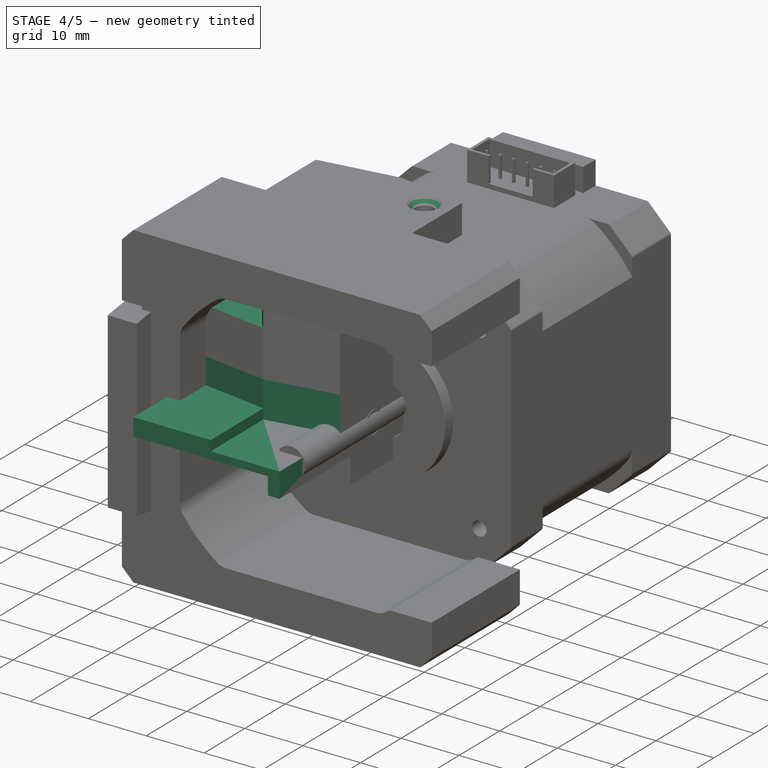
[diagram: stage 4 of 5 — iso view after this stage's code; geometry added in this stage tinted green]
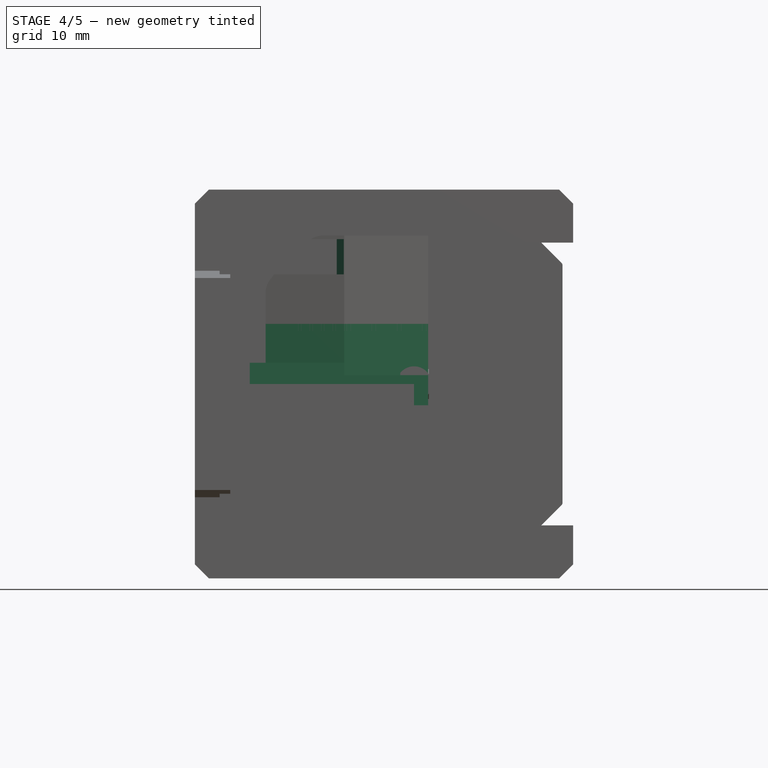
[diagram: stage 4 of 5 — front view after this stage's code; geometry added in this stage tinted green]
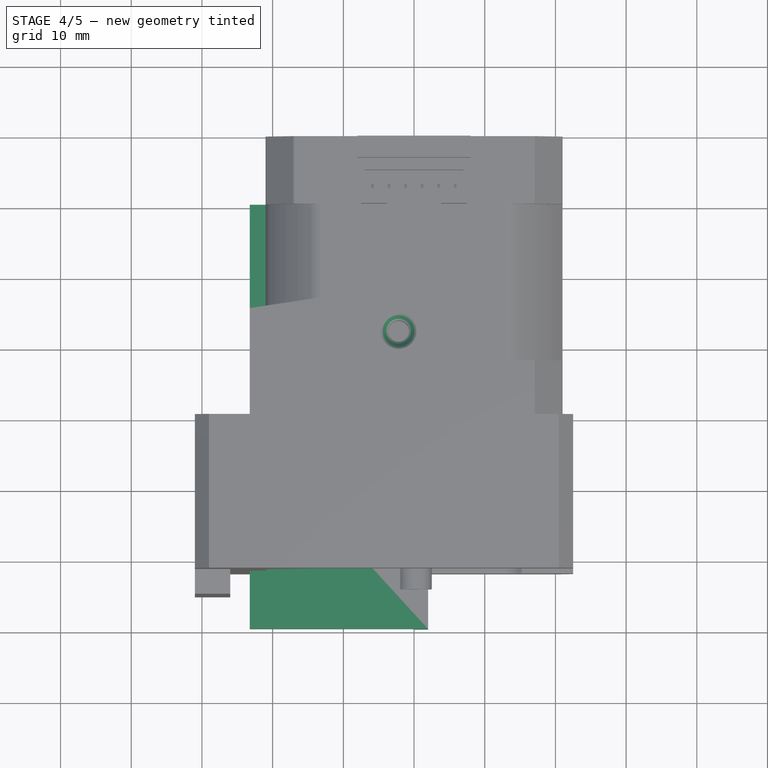
[diagram: stage 4 of 5 — top view after this stage's code; geometry added in this stage tinted green]
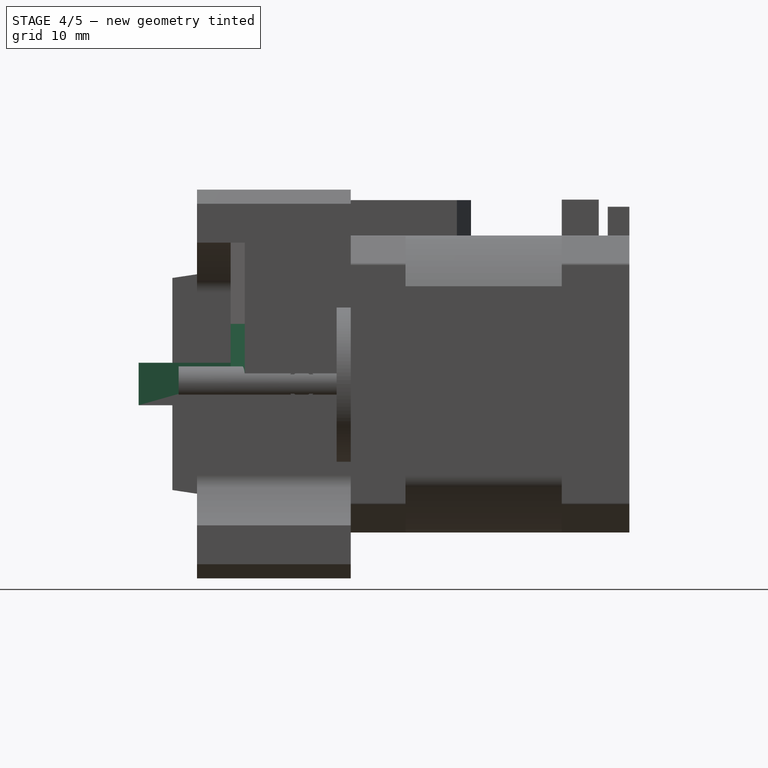
[diagram: stage 4 of 5 — right view after this stage's code; geometry added in this stage tinted green]
FEATURE [Sketcher::SketchObject] Sketch023
  ArcFitTolerance = 0
  AttachmentSupport = -> [Pocket002]
  ExternalGeometry = -> [Pocket002]
  ExternalTypes = [0]
  FullyConstrained = true
  MakeInternals = false
  MapMode = 5
  Placement = pos=(-23.231,4e-16,11.5) rot=(0.57735,-0.57735,-0.57735;2.0944rad)
  sketch-geometry (4):
    g0: LineSegment StartX=-17 StartY=9 StartZ=0 EndX=-17 EndY=4 EndZ=0
    g1: LineSegment StartX=-17 StartY=4 StartZ=0 EndX=17 EndY=4 EndZ=0
    g2: LineSegment StartX=17 StartY=4 StartZ=0 EndX=17 EndY=9 EndZ=0
    g3: LineSegment StartX=17 StartY=9 StartZ=0 EndX=-17 EndY=9 EndZ=0
  constraints (12):
    c: Coincident(g0,g1)
    c: Coincident(g1,g2)
    c: Coincident(g2,g3)
    c: Coincident(g3,g0)
    c: Vertical(g0)
    c: Vertical(g2)
    c: Horizontal(g1)
    c: Horizontal(g3)
    c: PointOnObject(g0,g-6)
    c: PointOnObject(g1,g-5)
    c: DistanceY(g2,g2) = 5
    c: DistanceY(g0,g-6) = 5.5
FEATURE [PartDesign::Pocket] Pocket003
  BaseFeature = -> Pocket002
  Direction = (1,0,0)
  Length = 12.3
  Length2 = 5
  Placement = pos=(0,3e-15,11.5) rot=(0,0,-1;1.5708rad)
  Profile = -> Sketch023
  ReferenceAxis = -> Sketch023 [N_Axis]
  SideType = 0
  Suppressed = false
  Type = 0
  Type2 = 0
FEATURE [PartDesign::ShapeBinder] ShapeBinder
  Support = -> [Pad003]
  TraceSupport = false
FEATURE [Sketcher::SketchObject] Sketch025
  ArcFitTolerance = 0
  AttachmentSupport = -> [XY_Plane]
  ExternalGeometry = -> [ShapeBinder]
  ExternalTypes = [0]
  FullyConstrained = true
  MakeInternals = false
  MapMode = 5
  sketch-geometry (4):
    g0: LineSegment StartX=-23.231 StartY=30 StartZ=0 EndX=-23.231 EndY=-30 EndZ=0
    g1: LineSegment StartX=-23.231 StartY=-30 StartZ=0 EndX=2 EndY=-30 EndZ=0
    g2: LineSegment StartX=2 StartY=-30 StartZ=0 EndX=2 EndY=30 EndZ=0
    g3: LineSegment StartX=2 StartY=30 StartZ=0 EndX=-23.231 EndY=30 EndZ=0
  constraints (11):
    c: Coincident(g0,g1)
    c: Coincident(g1,g2)
    c: Coincident(g2,g3)
    c: Coincident(g3,g0)
    c: Vertical(g2)
    c: Horizontal(g1)
    c: Horizontal(g3)
    c: DistanceY(g2,g2) = 60
    c: PointOnObject(g-3,g0)
    c: PointOnObject(g-4,g2)
    c: Symmetric(g0,g0,g-1)
FEATURE [PartDesign::Pad] Pad004
  Direction = (0,0,1)
  Length = 3
  Length2 = 10
  Profile = -> Sketch025
  ReferenceAxis = -> Sketch025 [N_Axis]
  SideType = 0
  Suppressed = false
  Type = 0
  Type2 = 0
FEATURE [Sketcher::SketchObject] Sketch026
  ArcFitTolerance = 0
  AttachmentSupport = -> [Pad004]
  ExternalGeometry = -> [ShapeBinder]
  ExternalTypes = [0]
  FullyConstrained = true
  MakeInternals = false
  MapMode = 5
  Placement = pos=(0,0,3) rot=(0,0,1;0rad)
  sketch-geometry (6):
    g0: LineSegment StartX=-23.231 StartY=15 StartZ=0 EndX=-9.88 EndY=17 EndZ=0
    g1: LineSegment StartX=-9.88 StartY=17 StartZ=0 EndX=2 EndY=15 EndZ=0
    g2: LineSegment StartX=2 StartY=15 StartZ=0 EndX=2 EndY=-15 EndZ=0
    g3: LineSegment StartX=2 StartY=-15 StartZ=0 EndX=-9.88 EndY=-17 EndZ=0
    g4: LineSegment StartX=-9.88 StartY=-17 StartZ=0 EndX=-23.231 EndY=-15 EndZ=0
    g5: LineSegment StartX=-23.231 StartY=-15 StartZ=0 EndX=-23.231 EndY=15 EndZ=0
  constraints (12):
    c: Coincident(g-6,g0)
    c: Coincident(g0,g-6)
    c: Coincident(g0,g1)
    c: Coincident(g1,g-5)
    c: Coincident(g1,g2)
    c: Coincident(g2,g-8)
    c: Coincident(g2,g3)
    c: Coincident(g3,g-8)
    c: Coincident(g3,g4)
    c: Coincident(g4,g-7)
    c: Coincident(g4,g5)
    c: Coincident(g5,g0)
FEATURE [PartDesign::Pad] Pad005
  BaseFeature = -> Pad004
  Direction = (0,0,1)
  Length = 5.5
  Length2 = 10
  Profile = -> Sketch026
  ReferenceAxis = -> Sketch026 [N_Axis]
  SideType = 0
  Suppressed = false
  Type = 0
  Type2 = 0
FEATURE [PartDesign::ShapeBinder] ShapeBinder001
  Support = -> [Sketch021]
  TraceSupport = false
FEATURE [Sketcher::SketchObject] Sketch027
  ArcFitTolerance = 0
  AttachmentSupport = -> [Pad005]
  ExternalGeometry = -> [ShapeBinder001]
  ExternalTypes = [0]
  FullyConstrained = false
  MakeInternals = false
  MapMode = 5
  Placement = pos=(0,0,8.5) rot=(0,0,1;0rad)
  sketch-geometry (2):
    g0: Circle CenterX=-2.18 CenterY=11.75 CenterZ=0 NormalX=0 NormalY=0 NormalZ=1 AngleXU=0 Radius=1.5
    g1: Circle CenterX=-2.18 CenterY=-11.75 CenterZ=0 NormalX=0 NormalY=0 NormalZ=1 AngleXU=0 Radius=1.5
  constraints (2):
    c: Diameter(g1) = 3
    c: Diameter(g0) = 3
FEATURE [PartDesign::Pocket] Pocket005
  BaseFeature = -> Pad005
  Direction = (0,0,-1)
  Length = 7.25
  Length2 = 5
  Profile = -> Sketch027
  ReferenceAxis = -> Sketch027 [N_Axis]
  SideType = 0
  Suppressed = false
  Type = 0
  Type2 = 0
FEATURE [Sketcher::SketchObject] Sketch028
  ArcFitTolerance = 0
  AttachmentSupport = -> [Pocket005]
  ExternalGeometry = -> [Pocket005]
  ExternalTypes = [0]
  FullyConstrained = true
  MakeInternals = false
  MapMode = 5
  Placement = pos=(0,0,0) rot=(1,0,0;3.14159rad)
  sketch-geometry (4):
    g0: LineSegment StartX=2 StartY=30 StartZ=0 EndX=0 EndY=30 EndZ=0
    g1: LineSegment StartX=0 StartY=30 StartZ=0 EndX=0 EndY=-30 EndZ=0
    g2: LineSegment StartX=0 StartY=-30 StartZ=0 EndX=2 EndY=-30 EndZ=0
    g3: LineSegment StartX=2 StartY=-30 StartZ=0 EndX=2 EndY=30 EndZ=0
  constraints (10):
    c: Coincident(g0,g1)
    c: Coincident(g1,g2)
    c: Coincident(g2,g3)
    c: Coincident(g3,g0)
    c: Horizontal(g0)
    c: Horizontal(g2)
    c: Vertical(g1)
    c: Coincident(g0,g-3)
    c: PointOnObject(g1,g-2)
    c: Coincident(g2,g-3)
FEATURE [PartDesign::Pad] Pad006
  BaseFeature = -> Pocket005
  Direction = (0,0,-1)
  Length = 3
  Length2 = 10
  Profile = -> Sketch028
  ReferenceAxis = -> Sketch028 [N_Axis]
  Refine = true
  SideType = 0
  Suppressed = false
  Type = 0
  Type2 = 0
FEATURE [Sketcher::SketchObject] Sketch029
  ArcFitTolerance = 0
  AttachmentSupport = -> [Pad006]
  ExternalGeometry = -> [Pad006]
  ExternalTypes = [0]
  FullyConstrained = true
  MakeInternals = false
  MapMode = 5
  Placement = pos=(0,0,3) rot=(0,0,1;0rad)
  sketch-geometry (8):
    g0: LineSegment StartX=2 StartY=30 StartZ=0 EndX=-9.88 EndY=30 EndZ=0
    g1: LineSegment StartX=-9.88 StartY=30 StartZ=0 EndX=-9.88 EndY=17 EndZ=0
    g2: LineSegment StartX=2 StartY=15 StartZ=0 EndX=2 EndY=30 EndZ=0
    g3: LineSegment StartX=2 StartY=-30 StartZ=0 EndX=2 EndY=-15 EndZ=0
    g4: LineSegment StartX=-9.88 StartY=-17 StartZ=0 EndX=-9.88 EndY=-30 EndZ=0
    g5: LineSegment StartX=-9.88 StartY=-30 StartZ=0 EndX=2 EndY=-30 EndZ=0
    g6: LineSegment StartX=-9.88 StartY=17 StartZ=0 EndX=2 EndY=15 EndZ=0
    g7: LineSegment StartX=-9.88 StartY=-17 StartZ=0 EndX=2 EndY=-15 EndZ=0
  constraints (18):
    c: Coincident(g0,g1)
    c: Coincident(g2,g0)
    c: Horizontal(g0)
    c: Vertical(g1)
    c: Coincident(g0,g-6)
    c: Coincident(g4,g5)
    c: Coincident(g5,g3)
    c: Vertical(g4)
    c: Horizontal(g5)
    c: Coincident(g3,g-5)
    c: Coincident(g6,g-8)
    c: Coincident(g6,g-8)
    c: Coincident(g6,g1)
    c: Coincident(g6,g2)
    c: Coincident(g3,g-7)
    c: Coincident(g4,g-7)
    c: Coincident(g7,g4)
    c: Coincident(g7,g3)
FEATURE [PartDesign::Pocket] Pocket006
  BaseFeature = -> Pad006
  Direction = (0,0,-1)
  Length = 1.75
  Length2 = 5
  Profile = -> Sketch029
  ReferenceAxis = -> Sketch029 [N_Axis]
  Refine = true
  SideType = 0
  Suppressed = false
  Type = 0
  Type2 = 0
FEATURE [PartDesign::Chamfer] Chamfer006
  Angle = 45
  Base = -> Pocket003 [Edge21,Edge26]
  BaseFeature = -> Pocket003
  ChamferType = 0
  FlipDirection = false
  Placement = pos=(0,3e-15,11.5) rot=(0,0,-1;1.5708rad)
  Size = 1
  Size2 = 1
  SupportTransform = false
  Suppressed = false
  UseAllEdges = false
FEATURE [PartDesign::Chamfer] Chamfer007
  Angle = 45
  Base = -> Chamfer006 [Edge37,Edge38]
  BaseFeature = -> Chamfer006
  ChamferType = 0
  FlipDirection = false
  Placement = pos=(0,3e-15,11.5) rot=(0,0,-1;1.5708rad)
  Size = 1
  Size2 = 1
  SupportTransform = false
  Suppressed = false
  UseAllEdges = false
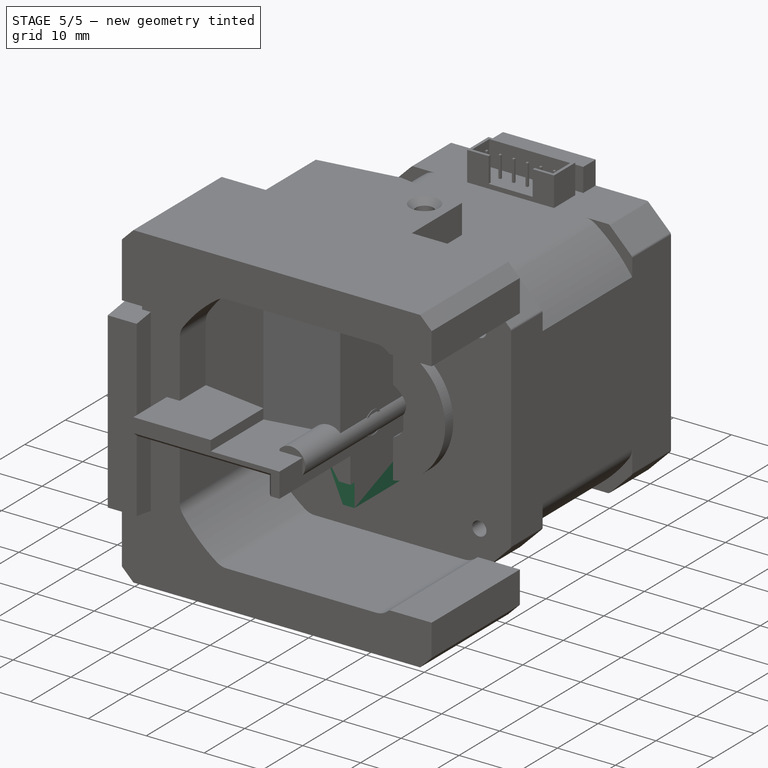
[diagram: stage 5 of 5 — iso view after this stage's code; geometry added in this stage tinted green]
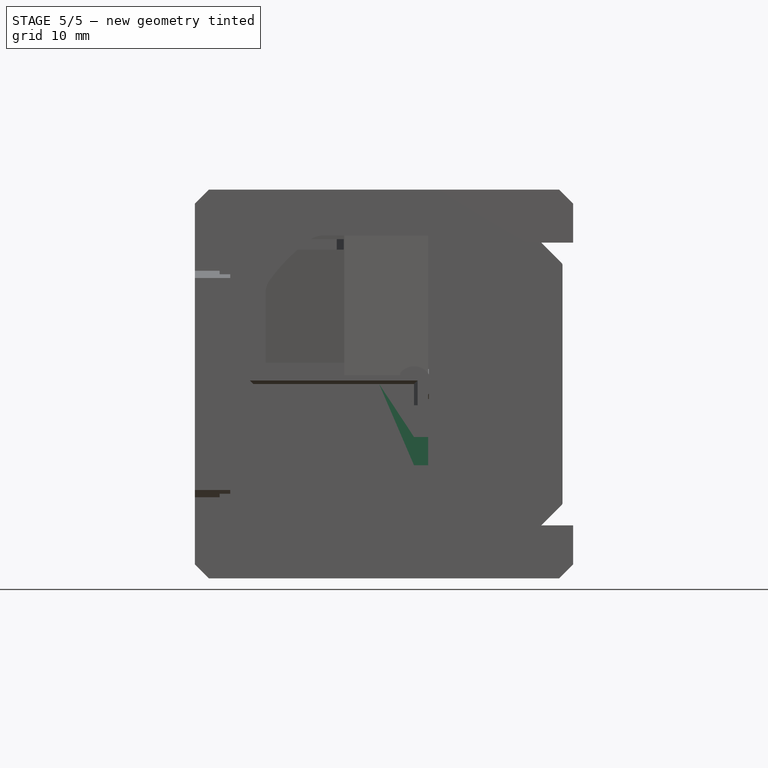
[diagram: stage 5 of 5 — front view after this stage's code; geometry added in this stage tinted green]
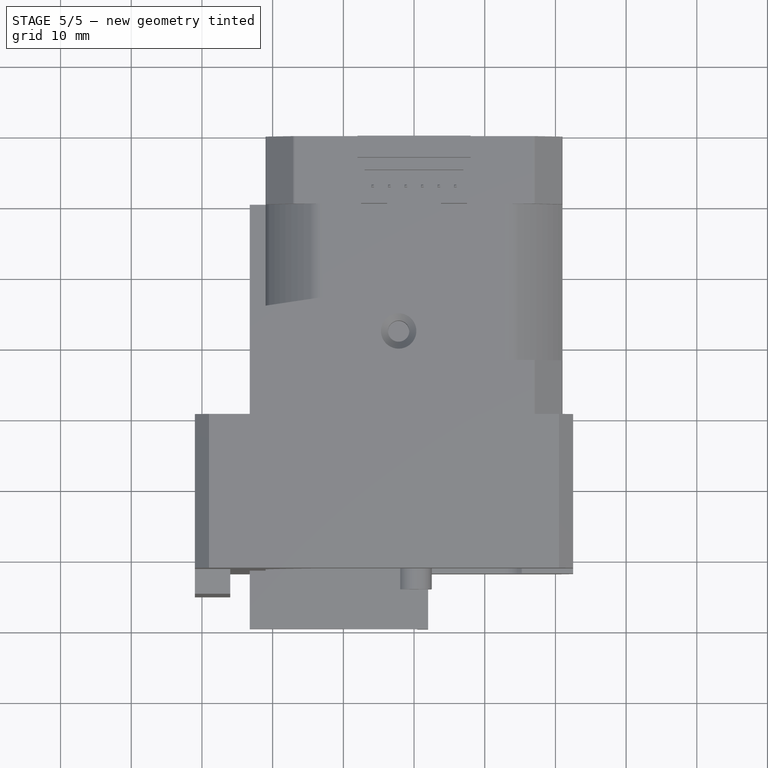
[diagram: stage 5 of 5 — top view after this stage's code; geometry added in this stage tinted green]
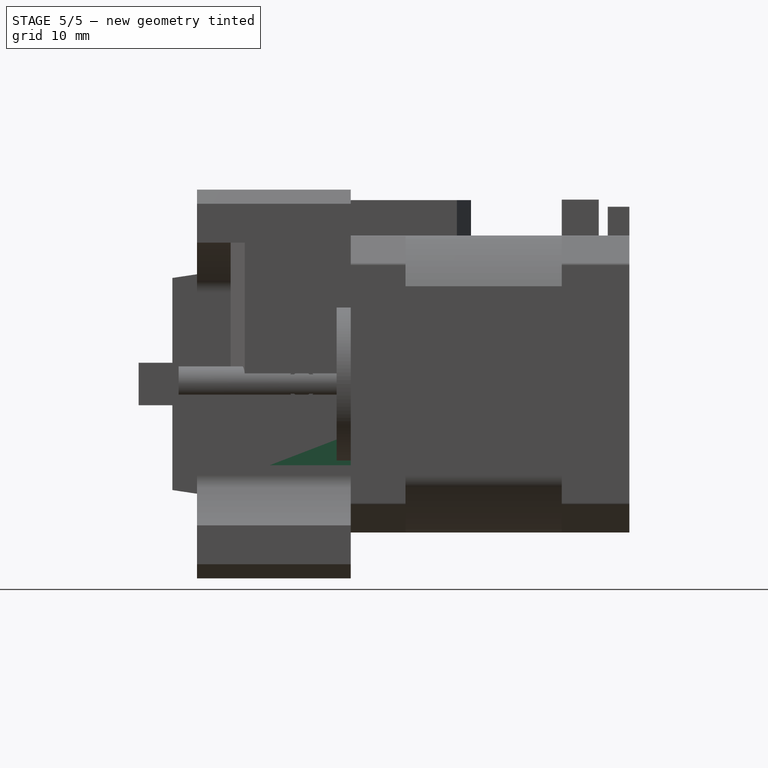
[diagram: stage 5 of 5 — right view after this stage's code; geometry added in this stage tinted green]
FEATURE [Sketcher::SketchObject] Sketch
  ArcFitTolerance = 0
  AttachmentSupport = -> [YZ_Plane001]
  ExternalTypes = [0]
  FullyConstrained = true
  MakeInternals = false
  MapMode = 5
  Placement = pos=(0,0,0) rot=(0.57735,0.57735,0.57735;2.0944rad)
  sketch-geometry (5):
    g0: LineSegment StartX=-11.5 StartY=11.5 StartZ=0 EndX=-11.5 EndY=-11.5 EndZ=0
    g1: LineSegment StartX=-11.5 StartY=-11.5 StartZ=0 EndX=11.5 EndY=-11.5 EndZ=0
    g2: LineSegment StartX=11.5 StartY=-11.5 StartZ=0 EndX=11.5 EndY=11.5 EndZ=0
    g3: LineSegment StartX=11.5 StartY=11.5 StartZ=0 EndX=-11.5 EndY=11.5 EndZ=0
    g4: GeomPoint [constr] X=0 Y=0 Z=0
  constraints (12):
    c: Coincident(g0,g1)
    c: Coincident(g1,g2)
    c: Coincident(g2,g3)
    c: Coincident(g3,g0)
    c: Vertical(g0)
    c: Vertical(g2)
    c: Horizontal(g1)
    c: Horizontal(g3)
    c: Symmetric(g2,g0,g4)
    c: Coincident(g4,g-1)
    c: DistanceX(g1,g1) = 23
    c: Equal(g2,g1)
FEATURE [PartDesign::Pad] Pad
  Direction = (1,0,0)
  Length = 2
  Length2 = 10
  Placement = pos=(0,0,0) rot=(1,1,1;2.0944rad)
  Profile = -> Sketch
  ReferenceAxis = -> Sketch [N_Axis]
  SideType = 0
  Suppressed = false
  Type = 0
  Type2 = 0
FEATURE [Sketcher::SketchObject] Sketch017
  ArcFitTolerance = 0
  AttachmentSupport = -> [Pad]
  ExternalGeometry = -> [Pad]
  ExternalTypes = [0]
  FullyConstrained = false
  MakeInternals = false
  MapMode = 5
  Placement = pos=(0,2.5e-15,11.5) rot=(0,0,-1;1.5708rad)
  sketch-geometry (6):
    g0: LineSegment StartX=-15 StartY=-23.231 StartZ=0 EndX=15 EndY=-23.231 EndZ=0
    g1: LineSegment StartX=15 StartY=2 StartZ=0 EndX=-15 EndY=2 EndZ=0
    g2: LineSegment StartX=-17 StartY=-9.88 StartZ=0 EndX=-15 EndY=-23.231 EndZ=0
    g3: LineSegment StartX=17 StartY=-9.88 StartZ=0 EndX=15 EndY=-23.231 EndZ=0
    g4: LineSegment StartX=-15 StartY=2 StartZ=0 EndX=-17 EndY=-9.88 EndZ=0
    g5: LineSegment StartX=15 StartY=2 StartZ=0 EndX=17 EndY=-9.88 EndZ=0
  constraints (8):
    c: Coincident(g0,g2)
    c: Distance(g2,g2) = 13.5
    c: Distance(g3,g3) = 13.5
    c: Coincident(g0,g3)
    c: DistanceX(g0,g0) = 30
    c: Symmetric(g0,g0,g-2)
    c: Coincident(g1,g4)
    c: Coincident(g1,g5)
FEATURE [PartDesign::Pad] Pad001
  BaseFeature = -> Pad
  Direction = (0,0,1)
  Length = 7.5
  Length2 = 10
  Placement = pos=(0,0,0) rot=(1,1,1;2.0944rad)
  Profile = -> Sketch017
  ReferenceAxis = -> Sketch017 [N_Axis]
  SideType = 0
  Suppressed = false
  Type = 0
  Type2 = 0
FEATURE [Sketcher::SketchObject] Sketch012
  ArcFitTolerance = 0
  AttachmentSupport = -> [Pad001]
  ExternalTypes = [0]
  FullyConstrained = true
  MakeInternals = false
  MapMode = 5
  Placement = pos=(0,0,0) rot=(0.57735,0.57735,-0.57735;4.18879rad)
  sketch-geometry (2):
    g0: Circle CenterX=-4.75 CenterY=-4.735 CenterZ=0 NormalX=0 NormalY=0 NormalZ=1 AngleXU=0 Radius=1.75
    g1: Circle CenterX=4.75 CenterY=4.735 CenterZ=0 NormalX=0 NormalY=0 NormalZ=1 AngleXU=0 Radius=1.75
  constraints (5):
    c: Diameter(g0) = 3.5
    c: Equal(g1,g0)
    c: DistanceX(g0,g1) = 9.5
    c: DistanceY(g0,g1) = 9.47
    c: Symmetric(g0,g1,g-1)
FEATURE [Sketcher::SketchObject] Sketch016
  ArcFitTolerance = 0
  AttachmentSupport = -> [Pad001]
  ExternalGeometry = -> [Pad001]
  ExternalTypes = [0]
  FullyConstrained = false
  MakeInternals = false
  MapMode = 5
  Placement = pos=(0,0,19) rot=(0,0,-1;1.5708rad)
  sketch-geometry (4):
    g0: Circle CenterX=11.75 CenterY=-2.18 CenterZ=0 NormalX=0 NormalY=0 NormalZ=1 AngleXU=0 Radius=1.5
    g1: Circle CenterX=-11.75 CenterY=-2.18 CenterZ=0 NormalX=0 NormalY=0 NormalZ=1 AngleXU=0 Radius=1.5
    g2: GeomPoint [constr] X=0 Y=-2.18 Z=0
    g3: GeomPoint [constr] X=0 Y=18 Z=0
  constraints (8):
    c: Equal(g0,g1)
    c: Diameter(g1) = 3
    c: DistanceX(g1,g0) = 23.5
    c: Symmetric(g1,g0,g2)
    c: Vertical(g2,g3)
    c: Horizontal(g0,g2)
    c: DistanceY(g0,g-3) = 4.18
    c: PointOnObject(g2,g-2)
FEATURE [PartDesign::Pocket] Pocket
  BaseFeature = -> Pad001
  Direction = (0,0,-1)
  Length = 7.25
  Length2 = 5
  Placement = pos=(0,0,0) rot=(1,1,1;2.0944rad)
  Profile = -> Sketch016
  ReferenceAxis = -> Sketch016 [N_Axis]
  SideType = 0
  Suppressed = false
  Type = 0
  Type2 = 0
FEATURE [PartDesign::Pocket] Pocket001
  BaseFeature = -> Pocket
  Direction = (1,0,0)
  Length = 5
  Length2 = 5
  Placement = pos=(0,0,0) rot=(1,1,1;2.0944rad)
  Profile = -> Sketch012
  ReferenceAxis = -> Sketch012 [N_Axis]
  SideType = 0
  Suppressed = false
  Type = 0
  Type2 = 0
FEATURE [Sketcher::SketchObject] Sketch018
  ArcFitTolerance = 0
  AttachmentSupport = -> [Pocket001]
  ExternalGeometry = -> [Sketch017,Pocket001]
  ExternalTypes = [0]
  FullyConstrained = true
  MakeInternals = false
  MapMode = 5
  Placement = pos=(-2.5e-15,-11.5,0) rot=(0.57735,0.57735,-0.57735;2.0944rad)
  sketch-geometry (3):
    g0: LineSegment StartX=-11.5 StartY=-9.88 StartZ=0 EndX=11.5 EndY=1.8e-15 EndZ=0
    g1: LineSegment StartX=-11.5 StartY=1.8e-15 StartZ=0 EndX=-11.5 EndY=-9.88 EndZ=0
    g2: LineSegment StartX=-11.5 StartY=1.8e-15 StartZ=0 EndX=11.5 EndY=1.8e-15 EndZ=0
  constraints (7):
    c: Coincident(g0,g-3)
    c: PointOnObject(g1,g-3)
    c: Coincident(g1,g0)
    c: Coincident(g2,g1)
    c: Horizontal(g2)
    c: Coincident(g-4,g0)
    c: Coincident(g2,g0)
FEATURE [PartDesign::Pad] Pad002
  BaseFeature = -> Pocket001
  Direction = (-1e-16,-1,1e-15)
  Length = 2
  Length2 = 10
  Placement = pos=(0,0,0) rot=(1,1,1;2.0944rad)
  Profile = -> Sketch018
  ReferenceAxis = -> Sketch018 [N_Axis]
  Reversed = true
  SideType = 0
  Suppressed = false
  Type = 0
  Type2 = 0
FEATURE [PartDesign::Mirrored] Mirrored
  BaseFeature = -> Pad002
  MirrorPlane = -> XZ_Plane001
  Originals = -> [Pad002]
  Placement = pos=(0,0,0) rot=(1,1,1;2.0944rad)
  Suppressed = false
  TransformMode = 0
FEATURE [PartDesign::Chamfer] Chamfer
  Angle = 45
  Base = -> Mirrored [Edge53,Edge52]
  BaseFeature = -> Mirrored
  ChamferType = 0
  FlipDirection = false
  Placement = pos=(0,0,0) rot=(1,1,1;2.0944rad)
  Size = 1
  Size2 = 1
  SupportTransform = false
  Suppressed = false
  UseAllEdges = false
FEATURE [PartDesign::Chamfer] Chamfer003
  Angle = 45
  Base = -> Pocket006 [Edge10,Edge12,Edge1,Edge4,Edge3]
  BaseFeature = -> Pocket006
  ChamferType = 0
  FlipDirection = false
  Size = 0.5
  Size2 = 1
  SupportTransform = false
  Suppressed = false
  UseAllEdges = false
FEATURE [PartDesign::Chamfer] Chamfer004
  Angle = 45
  Base = -> Chamfer003 [Edge57,Edge58]
  BaseFeature = -> Chamfer003
  ChamferType = 0
  FlipDirection = false
  Size = 1
  Size2 = 1
  SupportTransform = false
  Suppressed = false
  UseAllEdges = false
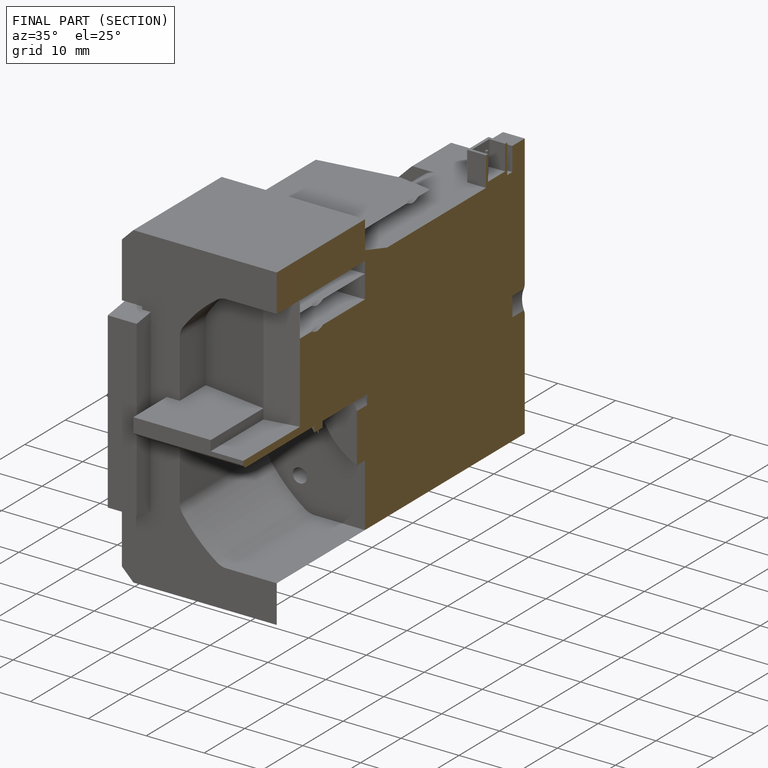
[diagram: finished part — half-section view (interior)]
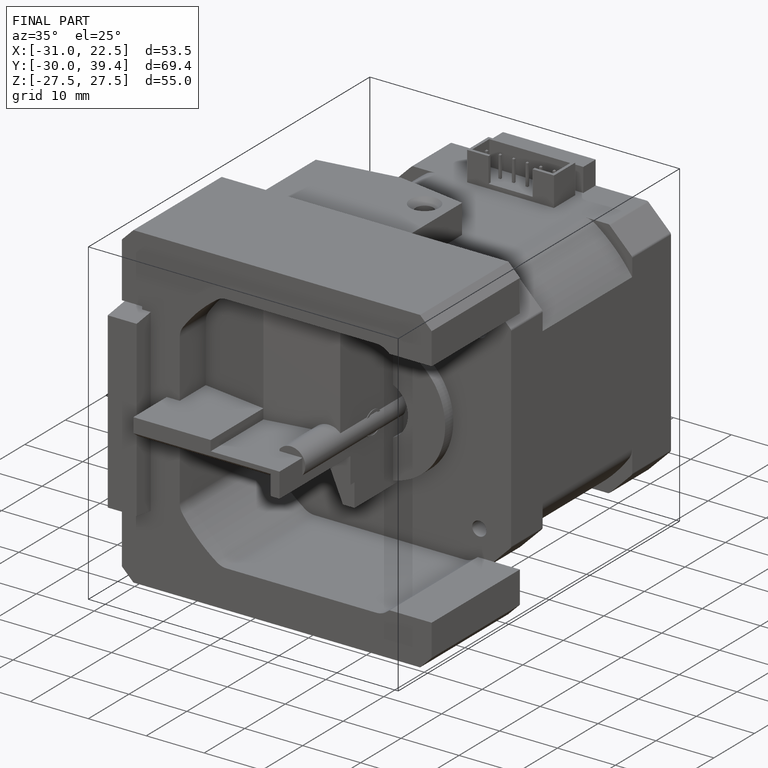
[diagram: finished part — iso view with bounding-box wireframe]
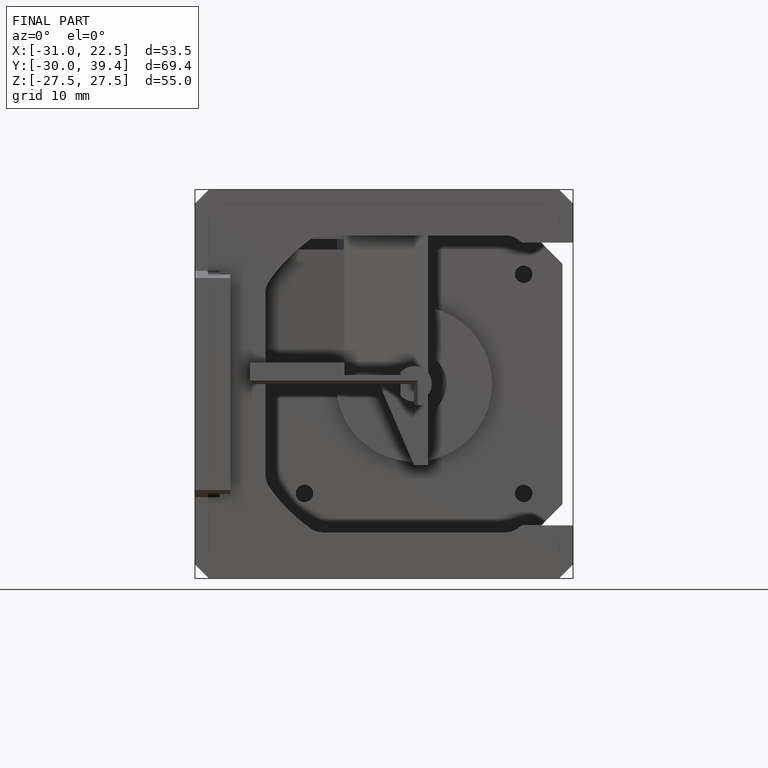
[diagram: finished part — front view with bounding-box wireframe]
